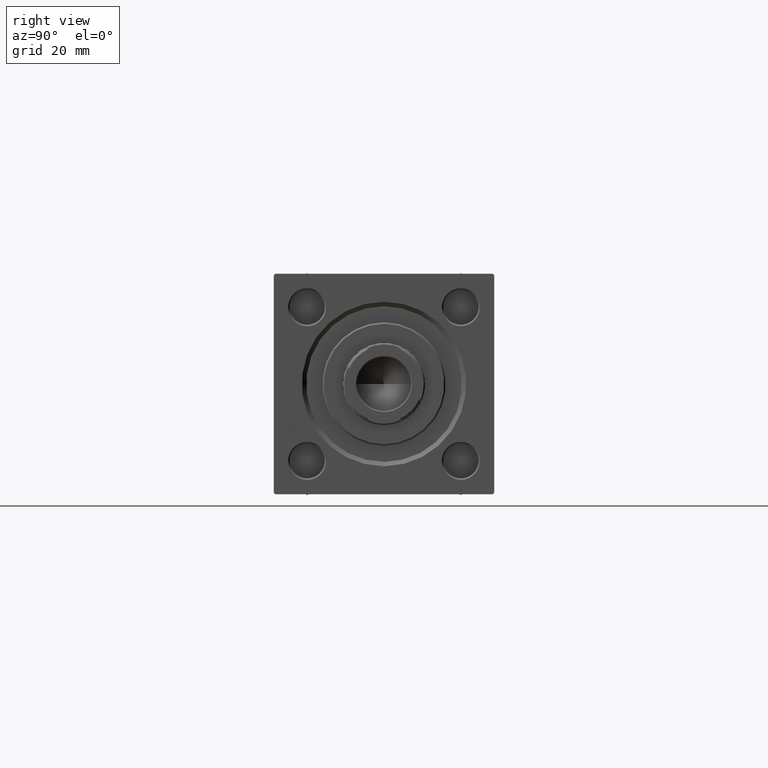
[diagram: clean part render]
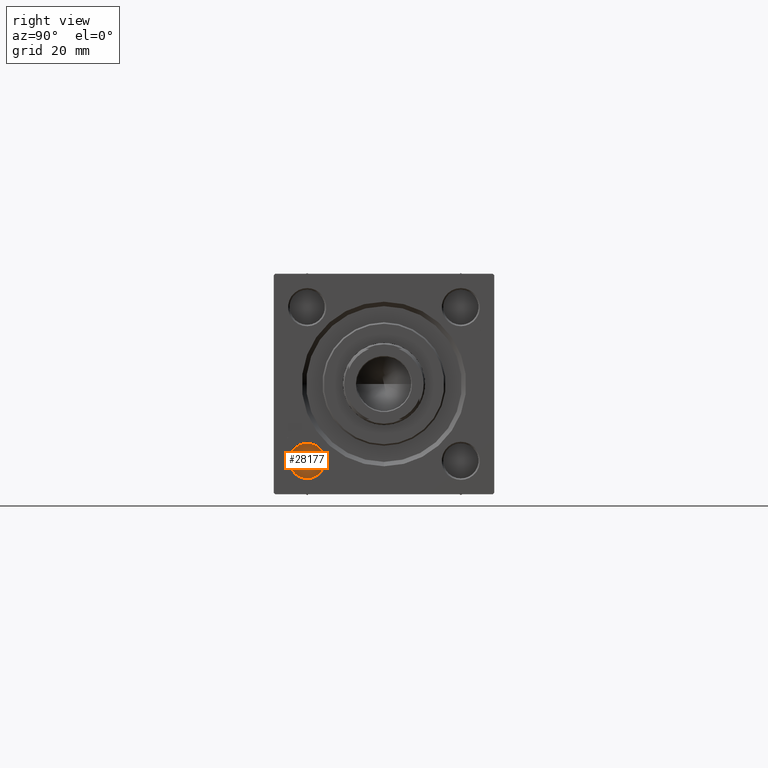
[diagram: same view with one face highlighted and labeled with its STEP entity id]
A machine part, right view. The second image highlights one B-rep face of the part: STEP entity #28177.
In plain terms, the highlighted planar face has unit normal (1, 0, 0).
Its self-contained STEP definition (entity closure, byte-faithful):
#7148 = ORIENTED_EDGE ( 'NONE', *, *, #31575, .T. ) ;
#11002 = FACE_OUTER_BOUND ( 'NONE', #37111, .T. ) ;
#11149 = AXIS2_PLACEMENT_3D ( 'NONE', #18557, #41127, #21863 ) ;
#11220 = CARTESIAN_POINT ( 'NONE',  ( 159.0000000000000000, -26.15000000000000213, -32.14999999999999858 ) ) ;
#14000 = VERTEX_POINT ( 'NONE', #22095 ) ;
#14907 = CIRCLE ( 'NONE', #43266, 5.999999999999994671 ) ;
#17460 = ORIENTED_EDGE ( 'NONE', *, *, #41156, .T. ) ;
#18557 = CARTESIAN_POINT ( 'NONE',  ( 159.0000000000000000, -26.15000000000000213, -26.15000000000000213 ) ) ;
#21863 = DIRECTION ( 'NONE',  ( 0.000000000000000000, 0.000000000000000000, -1.000000000000000000 ) ) ;
#22095 = CARTESIAN_POINT ( 'NONE',  ( 159.0000000000000000, -26.15000000000000213, -20.15000000000001279 ) ) ;
#24533 = AXIS2_PLACEMENT_3D ( 'NONE', #50088, #26753, #38907 ) ;
#26234 = DIRECTION ( 'NONE',  ( 1.000000000000000000, 0.000000000000000000, 0.000000000000000000 ) ) ;
#26504 = PLANE ( 'NONE',  #24533 ) ;
#26753 = DIRECTION ( 'NONE',  ( 1.000000000000000000, 0.000000000000000000, 0.000000000000000000 ) ) ;
#28177 = ADVANCED_FACE ( 'NONE', ( #11002 ), #26504, .T. ) ;
#31575 = EDGE_CURVE ( 'NONE', #14000, #47661, #14907, .T. ) ;
#33821 = CIRCLE ( 'NONE', #11149, 5.999999999999994671 ) ;
#37111 = EDGE_LOOP ( 'NONE', ( #17460, #7148 ) ) ;
#38907 = DIRECTION ( 'NONE',  ( 0.000000000000000000, 0.000000000000000000, -1.000000000000000000 ) ) ;
#41127 = DIRECTION ( 'NONE',  ( 1.000000000000000000, 0.000000000000000000, 0.000000000000000000 ) ) ;
#41156 = EDGE_CURVE ( 'NONE', #47661, #14000, #33821, .T. ) ;
#43266 = AXIS2_PLACEMENT_3D ( 'NONE', #45758, #26234, #46003 ) ;
#45758 = CARTESIAN_POINT ( 'NONE',  ( 159.0000000000000000, -26.15000000000000213, -26.15000000000000213 ) ) ;
#46003 = DIRECTION ( 'NONE',  ( 0.000000000000000000, 0.000000000000000000, -1.000000000000000000 ) ) ;
#47661 = VERTEX_POINT ( 'NONE', #11220 ) ;
#50088 = CARTESIAN_POINT ( 'NONE',  ( 159.0000000000000000, -26.15000000000000213, -26.15000000000000213 ) ) ;